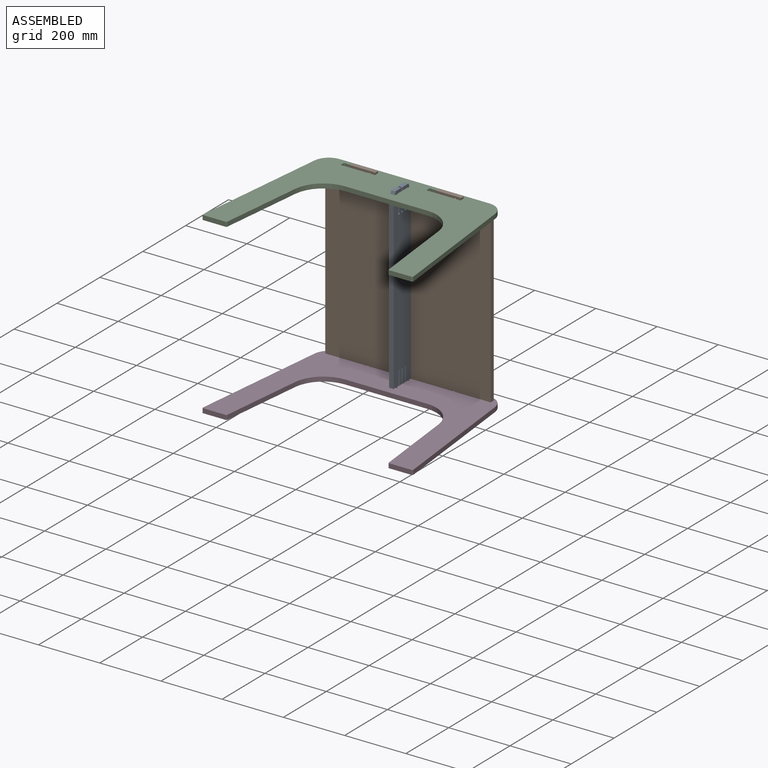
[diagram: assembled view]
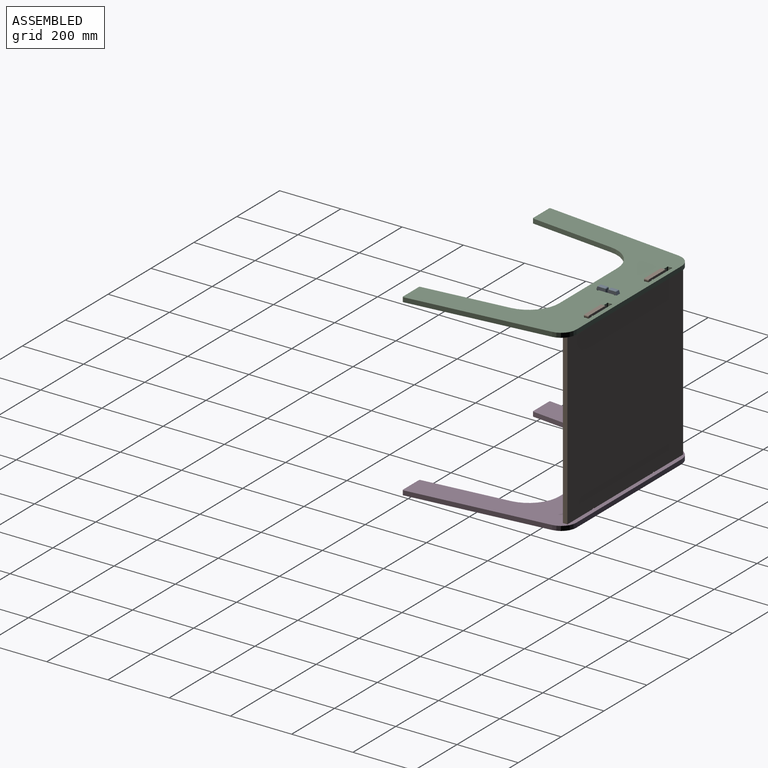
[diagram: assembled view, second angle]
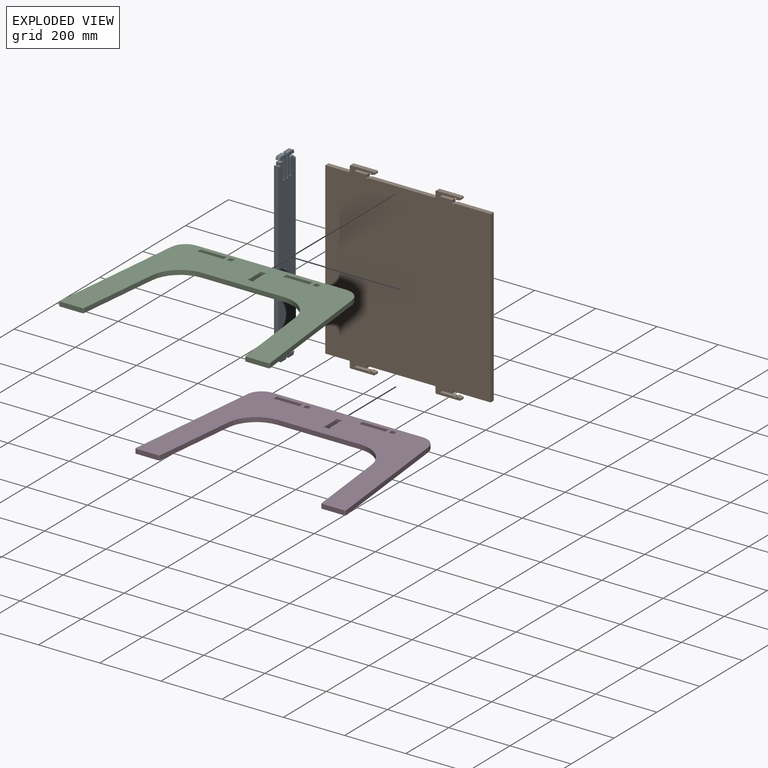
[diagram: exploded view]
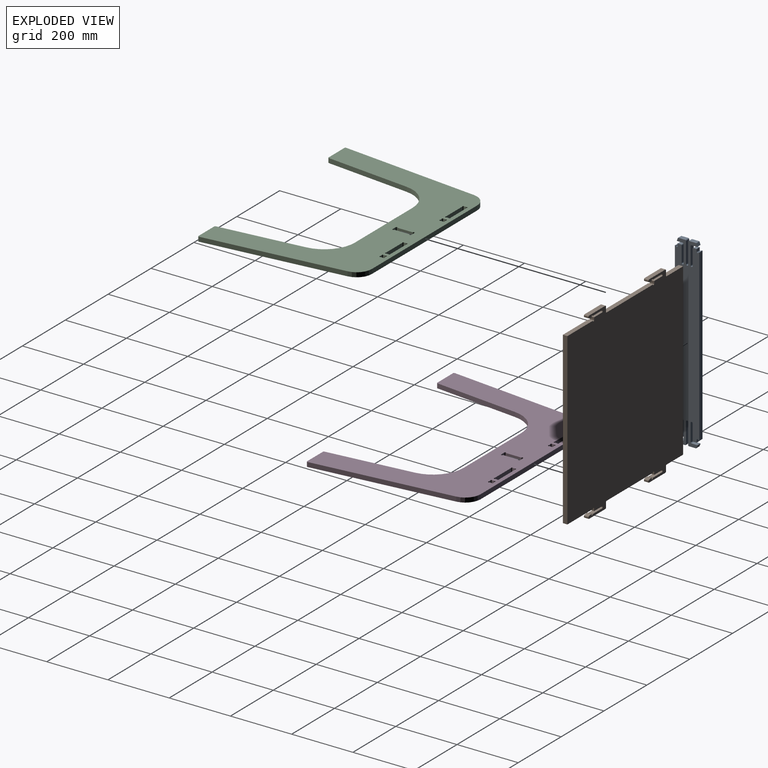
[diagram: exploded view, second angle]
ASSEMBLY  parts=4 mates=3
PART A: 82 faces, bbox 606.2x80x14.8 mm
  f0: plane 556x14.8mm, normal (0,1,0), area 8228.8mm2, adj f2,f3,f12,f52
  f1: plane 556x14.8mm, normal (0,-1,0), area 8228.8mm2, adj f2,f3,f13,f51
  f2: plane 606.17x80mm, normal (0,0,1), area 44539.7mm2, adj f0,f1,f4,f5,f6,f7,f8,f9
  f3: plane 606.17x80mm, normal (0,0,-1), area 44539.7mm2, adj f0,f1,f4,f5,f6,f7,f8,f9
  f4: cylinder r=3mm len=14.8mm, axis (0,0,-1), area 69.7mm2, adj f2,f3,f5,f42
  f5: plane 14.8x0.5mm, normal (1,0,0), area 7.4mm2, adj f2,f3,f4,f6
  f6: cylinder r=3mm len=14.8mm, axis (0,0,-1), area 69.7mm2, adj f2,f3,f5,f7
  f7: plane 51x14.8mm, normal (0,-1,0), area 754.8mm2, adj f2,f3,f6,f8
  f8: cylinder r=3mm len=14.8mm, axis (0,0,-1), area 69.7mm2, adj f2,f3,f7,f9
  f9: plane 14.8x10mm, normal (1,0,0), area 148mm2, adj f2,f3,f8,f10
  f10: plane 14.8x7.86mm, normal (0,1,0), area 116.3mm2, adj f2,f3,f9,f11
  f11: cylinder r=3mm len=14.8mm, axis (0,0,-1), area 139.5mm2, adj f2,f3,f10,f12
  f12: plane 14.8x3mm, normal (1,0,0), area 44.4mm2, adj f0,f2,f3,f11
  f13: plane 14.8x3mm, normal (1,0,0), area 44.4mm2, adj f1,f2,f3,f14
  f14: cylinder r=3mm len=14.8mm, axis (0,0,-1), area 139.5mm2, adj f2,f3,f13,f15
  f15: plane 14.8x7.86mm, normal (0,-1,0), area 116.3mm2, adj f2,f3,f14,f16
  f16: plane 14.8x10mm, normal (1,0,0), area 148mm2, adj f2,f3,f15,f17
  f17: cylinder r=3mm len=14.8mm, axis (0,0,-1), area 69.7mm2, adj f2,f3,f16,f18
  f18: plane 51x14.8mm, normal (0,1,0), area 754.8mm2, adj f2,f3,f17,f19
  f19: cylinder r=3mm len=14.8mm, axis (0,0,-1), area 69.7mm2, adj f2,f3,f18,f20
  f20: plane 14.8x0.5mm, normal (1,0,0), area 7.4mm2, adj f2,f3,f19,f21
  f21: cylinder r=3mm len=14.8mm, axis (0,0,-1), area 69.7mm2, adj f2,f3,f20,f22
  f22: plane 57.55x14.8mm, normal (0,-1,0), area 851.8mm2, adj f2,f3,f21,f23
  f23: cylinder r=3mm len=14.8mm, axis (0,0,-1), area 69mm2, adj f2,f3,f22,f24
  f24: plane 18.55x14.8mm, normal (-1,-0.02,0), area 274.6mm2, adj f2,f3,f23,f25
  f25: cylinder r=0.5mm len=14.8mm, axis (0,0,-1), area 14.1mm2, adj f2,f3,f24,f26
  f26: plane 14.8x8.36mm, normal (0.34,-0.94,0), area 131.7mm2, adj f2,f3,f25,f27
  f27: cylinder r=2mm len=14.8mm, axis (0,0,-1), area 36.2mm2, adj f2,f3,f26,f28
  f28: plane 22.03x14.8mm, normal (1,0,0), area 326.1mm2, adj f2,f3,f27,f29
  f29: cylinder r=3mm len=14.8mm, axis (0,0,-1), area 69.7mm2, adj f2,f3,f28,f30
  f30: plane 68.22x14.8mm, normal (0,1,0), area 1009.7mm2, adj f2,f3,f29,f31
  f31: cylinder r=3mm len=14.8mm, axis (0,0,-1), area 69.7mm2, adj f2,f3,f30,f32
  f32: plane 14.8x1mm, normal (1,0,0), area 14.8mm2, adj f2,f3,f31,f33
  f33: cylinder r=3mm len=14.8mm, axis (0,0,-1), area 69.7mm2, adj f2,f3,f32,f34
  f34: plane 68.22x14.8mm, normal (0,-1,0), area 1009.7mm2, adj f2,f3,f33,f35
  f35: cylinder r=3mm len=14.8mm, axis (0,0,-1), area 69.7mm2, adj f2,f3,f34,f36
  f36: plane 22.03x14.8mm, normal (1,0,0), area 326.1mm2, adj f2,f3,f35,f37
  f37: cylinder r=2mm len=14.8mm, axis (0,0,-1), area 36.2mm2, adj f2,f3,f36,f38
  f38: plane 14.8x8.36mm, normal (0.34,0.94,0), area 131.7mm2, adj f2,f3,f37,f39
  f39: cylinder r=0.5mm len=14.8mm, axis (0,0,-1), area 14.1mm2, adj f2,f3,f38,f40
  f40: plane 18.55x14.8mm, normal (-1,0.02,0), area 274.6mm2, adj f2,f3,f39,f41
  f41: cylinder r=3mm len=14.8mm, axis (0,0,-1), area 69mm2, adj f2,f3,f40,f42
  f42: plane 57.55x14.8mm, normal (0,1,0), area 851.8mm2, adj f2,f3,f4,f41
  f43: cylinder r=3mm len=14.8mm, axis (0,0,-1), area 69.7mm2, adj f2,f3,f44,f81
  f44: plane 14.8x0.5mm, normal (-1,0,0), area 7.4mm2, adj f2,f3,f43,f45
  f45: cylinder r=3mm len=14.8mm, axis (0,0,-1), area 69.7mm2, adj f2,f3,f44,f46
  f46: plane 51x14.8mm, normal (0,1,0), area 754.8mm2, adj f2,f3,f45,f47
  f47: cylinder r=3mm len=14.8mm, axis (0,0,-1), area 69.7mm2, adj f2,f3,f46,f48
  f48: plane 14.8x10mm, normal (-1,0,0), area 148mm2, adj f2,f3,f47,f49
  f49: plane 14.8x7.86mm, normal (0,-1,0), area 116.3mm2, adj f2,f3,f48,f50
  f50: cylinder r=3mm len=14.8mm, axis (0,0,-1), area 139.5mm2, adj f2,f3,f49,f51
  f51: plane 14.8x3mm, normal (-1,0,0), area 44.4mm2, adj f1,f2,f3,f50
  f52: plane 14.8x3mm, normal (-1,0,0), area 44.4mm2, adj f0,f2,f3,f53
  f53: cylinder r=3mm len=14.8mm, axis (0,0,-1), area 139.5mm2, adj f2,f3,f52,f54
  f54: plane 14.8x7.86mm, normal (0,1,0), area 116.3mm2, adj f2,f3,f53,f55
  f55: plane 14.8x10mm, normal (-1,0,0), area 148mm2, adj f2,f3,f54,f56
  f56: cylinder r=3mm len=14.8mm, axis (0,0,-1), area 69.7mm2, adj f2,f3,f55,f57
  f57: plane 51x14.8mm, normal (0,-1,0), area 754.8mm2, adj f2,f3,f56,f58
  f58: cylinder r=3mm len=14.8mm, axis (0,0,-1), area 69.7mm2, adj f2,f3,f57,f59
  f59: plane 14.8x0.5mm, normal (-1,0,0), area 7.4mm2, adj f2,f3,f58,f60
  f60: cylinder r=3mm len=14.8mm, axis (0,0,-1), area 69.7mm2, adj f2,f3,f59,f61
  f61: plane 57.55x14.8mm, normal (0,1,0), area 851.8mm2, adj f2,f3,f60,f62
  f62: cylinder r=3mm len=14.8mm, axis (0,0,-1), area 69mm2, adj f2,f3,f61,f63
  f63: plane 18.55x14.8mm, normal (1,0.02,0), area 274.6mm2, adj f2,f3,f62,f64
  f64: cylinder r=0.5mm len=14.8mm, axis (0,0,-1), area 14.1mm2, adj f2,f3,f63,f65
  f65: plane 14.8x8.36mm, normal (-0.34,0.94,0), area 131.7mm2, adj f2,f3,f64,f66
  f66: cylinder r=2mm len=14.8mm, axis (0,0,-1), area 36.2mm2, adj f2,f3,f65,f67
  f67: plane 22.03x14.8mm, normal (-1,0,0), area 326.1mm2, adj f2,f3,f66,f68
  f68: cylinder r=3mm len=14.8mm, axis (0,0,-1), area 69.7mm2, adj f2,f3,f67,f69
  f69: plane 68.22x14.8mm, normal (0,-1,0), area 1009.7mm2, adj f2,f3,f68,f70
  f70: cylinder r=3mm len=14.8mm, axis (0,0,-1), area 69.7mm2, adj f2,f3,f69,f71
  f71: plane 14.8x1mm, normal (-1,0,0), area 14.8mm2, adj f2,f3,f70,f72
  f72: cylinder r=3mm len=14.8mm, axis (0,0,-1), area 69.7mm2, adj f2,f3,f71,f73
  f73: plane 68.22x14.8mm, normal (0,1,0), area 1009.7mm2, adj f2,f3,f72,f74
  f74: cylinder r=3mm len=14.8mm, axis (0,0,-1), area 69.7mm2, adj f2,f3,f73,f75
  f75: plane 22.03x14.8mm, normal (-1,0,0), area 326.1mm2, adj f2,f3,f74,f76
  f76: cylinder r=2mm len=14.8mm, axis (0,0,-1), area 36.2mm2, adj f2,f3,f75,f77
  f77: plane 14.8x8.36mm, normal (-0.34,-0.94,0), area 131.7mm2, adj f2,f3,f76,f78
  f78: cylinder r=0.5mm len=14.8mm, axis (0,0,-1), area 14.1mm2, adj f2,f3,f77,f79
  f79: plane 18.55x14.8mm, normal (1,-0.02,0), area 274.6mm2, adj f2,f3,f78,f80
  f80: cylinder r=3mm len=14.8mm, axis (0,0,-1), area 69mm2, adj f2,f3,f79,f81
  f81: plane 57.55x14.8mm, normal (0,-1,0), area 851.8mm2, adj f2,f3,f43,f80
PART B: 82 faces, bbox 540x600x14.8 mm
  f0: plane 216x14.8mm, normal (0,1,0), area 3196.8mm2, adj f1,f20,f21,f40
  f1: cylinder r=3mm len=14.8mm, axis (0,0,-1), area 139.5mm2, adj f0,f2,f20,f21
  f2: plane 14.8x8mm, normal (1,0,0), area 118.4mm2, adj f1,f3,f20,f21
  f3: plane 36.57x14.8mm, normal (0,1,0), area 541.2mm2, adj f2,f4,f20,f21
  f4: cylinder r=3mm len=14.8mm, axis (0,0,-1), area 69.7mm2, adj f3,f5,f20,f21
  f5: plane 14.8x0.5mm, normal (1,0,0), area 7.4mm2, adj f4,f6,f20,f21
  f6: cylinder r=3mm len=14.8mm, axis (0,0,-1), area 69.7mm2, adj f5,f7,f20,f21
  f7: plane 42.5x14.8mm, normal (0,-1,0), area 629mm2, adj f6,f8,f20,f21
  f8: cylinder r=3mm len=14.8mm, axis (0,0,-1), area 139.5mm2, adj f7,f9,f20,f21
  f9: plane 14.8x2.2mm, normal (-1,0,0), area 32.6mm2, adj f8,f10,f20,f21
  f10: cylinder r=0.5mm len=14.8mm, axis (0,0,-1), area 12.9mm2, adj f9,f11,f20,f21
  f11: plane 14.8x11.71mm, normal (0.17,-0.98,0), area 175.9mm2, adj f10,f12,f20,f21
  f12: cylinder r=3mm len=14.8mm, axis (0,0,-1), area 62mm2, adj f11,f13,f20,f21
  f13: plane 14.8x2.18mm, normal (1,0,0), area 32.2mm2, adj f12,f14,f20,f21
  f14: cylinder r=3mm len=14.8mm, axis (0,0,-1), area 69.7mm2, adj f13,f15,f20,f21
  f15: plane 75.71x14.8mm, normal (0,1,0), area 1120.5mm2, adj f14,f16,f20,f21
  f16: cylinder r=3mm len=14.8mm, axis (0,0,-1), area 69.7mm2, adj f15,f17,f20,f21
  f17: plane 16x14.8mm, normal (-1,0,0), area 236.8mm2, adj f16,f18,f20,f21
  f18: cylinder r=3mm len=14.8mm, axis (0,0,-1), area 69.7mm2, adj f17,f19,f20,f21
  f19: plane 77x14.8mm, normal (0,1,0), area 1139.6mm2, adj f18,f20,f21,f81
  f20: plane 600x540mm, normal (0,0,1), area 304830.2mm2, adj f0,f1,f2,f3,f4,f5,f6,f7
  f21: plane 600x540mm, normal (0,0,-1), area 304830.2mm2, adj f0,f1,f2,f3,f4,f5,f6,f7
  f22: plane 119x14.8mm, normal (0,1,0), area 1761.2mm2, adj f20,f21,f23,f80
  f23: cylinder r=3mm len=14.8mm, axis (0,0,-1), area 139.5mm2, adj f20,f21,f22,f24
  f24: plane 14.8x8mm, normal (1,0,0), area 118.4mm2, adj f20,f21,f23,f25
  f25: plane 36.57x14.8mm, normal (0,1,0), area 541.2mm2, adj f20,f21,f24,f26
  f26: cylinder r=3mm len=14.8mm, axis (0,0,-1), area 69.7mm2, adj f20,f21,f25,f27
  f27: plane 14.8x0.5mm, normal (1,0,0), area 7.4mm2, adj f20,f21,f26,f28
  f28: cylinder r=3mm len=14.8mm, axis (0,0,-1), area 69.7mm2, adj f20,f21,f27,f29
  f29: plane 42.5x14.8mm, normal (0,-1,0), area 629mm2, adj f20,f21,f28,f30
  f30: cylinder r=3mm len=14.8mm, axis (0,0,-1), area 139.5mm2, adj f20,f21,f29,f31
  f31: plane 14.8x2.2mm, normal (-1,0,0), area 32.6mm2, adj f20,f21,f30,f32
  f32: cylinder r=0.5mm len=14.8mm, axis (0,0,-1), area 12.9mm2, adj f20,f21,f31,f33
  f33: plane 14.8x11.71mm, normal (0.17,-0.98,0), area 175.9mm2, adj f20,f21,f32,f34
  f34: cylinder r=3mm len=14.8mm, axis (0,0,-1), area 62mm2, adj f20,f21,f33,f35
  f35: plane 14.8x2.18mm, normal (1,0,0), area 32.2mm2, adj f20,f21,f34,f36
  f36: cylinder r=3mm len=14.8mm, axis (0,0,-1), area 69.7mm2, adj f20,f21,f35,f37
  f37: plane 75.71x14.8mm, normal (0,1,0), area 1120.5mm2, adj f20,f21,f36,f38
  f38: cylinder r=3mm len=14.8mm, axis (0,0,-1), area 69.7mm2, adj f20,f21,f37,f39
  f39: plane 16x14.8mm, normal (-1,0,0), area 236.8mm2, adj f20,f21,f38,f40
  f40: cylinder r=3mm len=14.8mm, axis (0,0,-1), area 69.7mm2, adj f0,f20,f21,f39
  f41: plane 119x14.8mm, normal (0,-1,0), area 1761.2mm2, adj f20,f21,f42,f80
  f42: cylinder r=3mm len=14.8mm, axis (0,0,1), area 139.5mm2, adj f20,f21,f41,f43
  f43: plane 14.8x8mm, normal (1,0,0), area 118.4mm2, adj f20,f21,f42,f44
  f44: plane 36.57x14.8mm, normal (0,-1,0), area 541.2mm2, adj f20,f21,f43,f45
  f45: cylinder r=3mm len=14.8mm, axis (0,0,1), area 69.7mm2, adj f20,f21,f44,f46
  f46: plane 14.8x0.5mm, normal (1,0,0), area 7.4mm2, adj f20,f21,f45,f47
  f47: cylinder r=3mm len=14.8mm, axis (0,0,1), area 69.7mm2, adj f20,f21,f46,f48
  f48: plane 42.5x14.8mm, normal (0,1,0), area 629mm2, adj f20,f21,f47,f49
  f49: cylinder r=3mm len=14.8mm, axis (0,0,1), area 139.5mm2, adj f20,f21,f48,f50
  f50: plane 14.8x2.2mm, normal (-1,0,0), area 32.6mm2, adj f20,f21,f49,f51
  f51: cylinder r=0.5mm len=14.8mm, axis (0,0,1), area 12.9mm2, adj f20,f21,f50,f52
  f52: plane 14.8x11.71mm, normal (0.17,0.98,0), area 175.9mm2, adj f20,f21,f51,f53
  f53: cylinder r=3mm len=14.8mm, axis (0,0,1), area 62mm2, adj f20,f21,f52,f54
  f54: plane 14.8x2.18mm, normal (1,0,0), area 32.2mm2, adj f20,f21,f53,f55
  f55: cylinder r=3mm len=14.8mm, axis (0,0,1), area 69.7mm2, adj f20,f21,f54,f56
  f56: plane 75.71x14.8mm, normal (0,-1,0), area 1120.5mm2, adj f20,f21,f55,f57
  f57: cylinder r=3mm len=14.8mm, axis (0,0,1), area 69.7mm2, adj f20,f21,f56,f58
  f58: plane 16x14.8mm, normal (-1,0,0), area 236.8mm2, adj f20,f21,f57,f59
  f59: cylinder r=3mm len=14.8mm, axis (0,0,1), area 69.7mm2, adj f20,f21,f58,f60
  f60: plane 216x14.8mm, normal (0,-1,0), area 3196.8mm2, adj f20,f21,f59,f61
  f61: cylinder r=3mm len=14.8mm, axis (0,0,1), area 139.5mm2, adj f20,f21,f60,f62
  f62: plane 14.8x8mm, normal (1,0,0), area 118.4mm2, adj f20,f21,f61,f63
  f63: plane 36.57x14.8mm, normal (0,-1,0), area 541.2mm2, adj f20,f21,f62,f64
  f64: cylinder r=3mm len=14.8mm, axis (0,0,1), area 69.7mm2, adj f20,f21,f63,f65
  f65: plane 14.8x0.5mm, normal (1,0,0), area 7.4mm2, adj f20,f21,f64,f66
  f66: cylinder r=3mm len=14.8mm, axis (0,0,1), area 69.7mm2, adj f20,f21,f65,f67
  f67: plane 42.5x14.8mm, normal (0,1,0), area 629mm2, adj f20,f21,f66,f68
  f68: cylinder r=3mm len=14.8mm, axis (0,0,1), area 139.5mm2, adj f20,f21,f67,f69
  f69: plane 14.8x2.2mm, normal (-1,0,0), area 32.6mm2, adj f20,f21,f68,f70
  f70: cylinder r=0.5mm len=14.8mm, axis (0,0,1), area 12.9mm2, adj f20,f21,f69,f71
  f71: plane 14.8x11.71mm, normal (0.17,0.98,0), area 175.9mm2, adj f20,f21,f70,f72
  f72: cylinder r=3mm len=14.8mm, axis (0,0,1), area 62mm2, adj f20,f21,f71,f73
  f73: plane 14.8x2.18mm, normal (1,0,0), area 32.2mm2, adj f20,f21,f72,f74
  f74: cylinder r=3mm len=14.8mm, axis (0,0,1), area 69.7mm2, adj f20,f21,f73,f75
  f75: plane 75.71x14.8mm, normal (0,-1,0), area 1120.5mm2, adj f20,f21,f74,f76
  f76: cylinder r=3mm len=14.8mm, axis (0,0,1), area 69.7mm2, adj f20,f21,f75,f77
  f77: plane 16x14.8mm, normal (-1,0,0), area 236.8mm2, adj f20,f21,f76,f78
  f78: cylinder r=3mm len=14.8mm, axis (0,0,1), area 69.7mm2, adj f20,f21,f77,f79
  f79: plane 77x14.8mm, normal (0,-1,0), area 1139.6mm2, adj f20,f21,f78,f81
  f80: plane 556x14.8mm, normal (1,0,0), area 8228.8mm2, adj f20,f21,f22,f41
  f81: plane 556x14.8mm, normal (-1,0,0), area 8228.8mm2, adj f19,f20,f21,f79
PART C: 58 faces, bbox 687.3x500x14.8 mm
  f0: plane 14.8x6.31mm, normal (-1,0,0), area 93.5mm2, adj f1,f14,f16,f17
  f1: cylinder r=3mm len=14.8mm, axis (0,0,-1), area 139.5mm2, adj f0,f2,f16,f17
  f2: plane 14.8x6.29mm, normal (0,1,0), area 93mm2, adj f1,f3,f16,f17
  f3: cylinder r=3mm len=14.8mm, axis (0,0,-1), area 139.5mm2, adj f2,f4,f16,f17
  f4: plane 14.8x6.31mm, normal (1,0,0), area 93.5mm2, adj f3,f5,f16,f17
  f5: cylinder r=3mm len=14.8mm, axis (0,0,-1), area 139.5mm2, adj f4,f6,f16,f17
  f6: plane 14.8x6.29mm, normal (0,-1,0), area 93mm2, adj f5,f14,f16,f17
  f7: cylinder r=3mm len=14.8mm, axis (0,0,-1), area 139.5mm2, adj f8,f15,f16,f17
  f8: plane 14.8x6.22mm, normal (-1,0,0), area 92mm2, adj f7,f9,f16,f17
  f9: cylinder r=3mm len=14.8mm, axis (0,0,-1), area 139.5mm2, adj f8,f10,f16,f17
  f10: plane 75.61x14.8mm, normal (0,1,0), area 1119mm2, adj f9,f11,f16,f17
  f11: cylinder r=3mm len=14.8mm, axis (0,0,-1), area 139.5mm2, adj f10,f12,f16,f17
  f12: plane 14.8x6.32mm, normal (1,0,0), area 93.5mm2, adj f11,f13,f16,f17
  f13: cylinder r=3mm len=14.8mm, axis (0,0,-1), area 139.5mm2, adj f12,f15,f16,f17
  f14: cylinder r=3mm len=14.8mm, axis (0,0,-1), area 139.5mm2, adj f0,f6,f16,f17
  f15: plane 75.52x14.8mm, normal (0,-1,0), area 1117.6mm2, adj f7,f13,f16,f17
  f16: plane 687.32x500mm, normal (0,0,1), area 136278.7mm2, adj f0,f1,f2,f3,f4,f5,f6,f7
  f17: plane 687.32x500mm, normal (0,0,-1), area 136278.7mm2, adj f0,f1,f2,f3,f4,f5,f6,f7
  f18: plane 14.8x6.31mm, normal (-1,0,0), area 93.5mm2, adj f16,f17,f19,f32
  f19: cylinder r=3mm len=14.8mm, axis (0,0,-1), area 139.5mm2, adj f16,f17,f18,f20
  f20: plane 14.8x6.29mm, normal (0,1,0), area 93mm2, adj f16,f17,f19,f21
  f21: cylinder r=3mm len=14.8mm, axis (0,0,-1), area 139.5mm2, adj f16,f17,f20,f22
  f22: plane 14.8x6.31mm, normal (1,0,0), area 93.5mm2, adj f16,f17,f21,f23
  f23: cylinder r=3mm len=14.8mm, axis (0,0,-1), area 139.5mm2, adj f16,f17,f22,f24
  f24: plane 14.8x6.29mm, normal (0,-1,0), area 93mm2, adj f16,f17,f23,f32
  f25: cylinder r=3mm len=14.8mm, axis (0,0,-1), area 139.5mm2, adj f16,f17,f26,f33
  f26: plane 14.8x6.22mm, normal (-1,0,0), area 92mm2, adj f16,f17,f25,f27
  f27: cylinder r=3mm len=14.8mm, axis (0,0,-1), area 139.5mm2, adj f16,f17,f26,f28
  f28: plane 75.61x14.8mm, normal (0,1,0), area 1119mm2, adj f16,f17,f27,f29
  f29: cylinder r=3mm len=14.8mm, axis (0,0,-1), area 139.5mm2, adj f16,f17,f28,f30
  f30: plane 14.8x6.32mm, normal (1,0,0), area 93.5mm2, adj f16,f17,f29,f31
  f31: cylinder r=3mm len=14.8mm, axis (0,0,-1), area 139.5mm2, adj f16,f17,f30,f33
  f32: cylinder r=3mm len=14.8mm, axis (0,0,-1), area 139.5mm2, adj f16,f17,f18,f24
  f33: plane 75.52x14.8mm, normal (0,-1,0), area 1117.6mm2, adj f16,f17,f25,f31
  f34: cylinder r=3mm len=14.8mm, axis (0,0,-1), area 139.5mm2, adj f16,f17,f35,f41
  f35: plane 50x14.8mm, normal (1,0,0), area 740mm2, adj f16,f17,f34,f36
  f36: cylinder r=3mm len=14.8mm, axis (0,0,-1), area 139.5mm2, adj f16,f17,f35,f37
  f37: plane 14.8x14.75mm, normal (0,-1,0), area 218.3mm2, adj f16,f17,f36,f38
  f38: cylinder r=3mm len=14.8mm, axis (0,0,-1), area 139.5mm2, adj f16,f17,f37,f39
  f39: plane 50x14.8mm, normal (-1,0,0), area 740mm2, adj f16,f17,f38,f40
  f40: cylinder r=3mm len=14.8mm, axis (0,0,-1), area 139.5mm2, adj f16,f17,f39,f41
  f41: plane 14.8x14.75mm, normal (0,1,0), area 218.3mm2, adj f16,f17,f34,f40
  f42: plane 452.05x48.82mm, normal (-0.99,0.11,0), area 6729.2mm2, adj f16,f17,f43,f57
  f43: cylinder r=3mm len=14.8mm, axis (0,0,-1), area 74.5mm2, adj f16,f17,f42,f44
  f44: plane 73.97x14.8mm, normal (0,-1,0), area 1094.7mm2, adj f16,f17,f43,f45
  f45: cylinder r=3mm len=14.8mm, axis (0,0,-1), area 65mm2, adj f16,f17,f44,f46
  f46: plane 275.06x29.71mm, normal (0.99,-0.11,0), area 4094.6mm2, adj f16,f17,f45,f47
  f47: cylinder r=100mm len=99.42mm, axis (0,0,-1), area 2165.6mm2, adj f16,f17,f46,f48
  f48: plane 269.17x14.8mm, normal (0,-1,0), area 3983.6mm2, adj f16,f17,f47,f49
  f49: cylinder r=100mm len=99.42mm, axis (0,0,-1), area 2165.6mm2, adj f16,f17,f48,f50
  f50: plane 275.06x29.71mm, normal (-0.99,-0.11,0), area 4094.6mm2, adj f16,f17,f49,f51
  f51: cylinder r=3mm len=14.8mm, axis (0,0,-1), area 65mm2, adj f16,f17,f50,f52
  f52: plane 73.97x14.8mm, normal (0,-1,0), area 1094.7mm2, adj f16,f17,f51,f53
  f53: cylinder r=3mm len=14.8mm, axis (0,0,-1), area 74.5mm2, adj f16,f17,f52,f54
  f54: plane 452.05x48.82mm, normal (0.99,0.11,0), area 6729.2mm2, adj f16,f17,f53,f55
  f55: cylinder r=50mm len=49.71mm, axis (0,0,-1), area 1082.8mm2, adj f16,f17,f54,f56
  f56: plane 490.22x14.8mm, normal (0,1,0), area 7255.2mm2, adj f16,f17,f55,f57
  f57: cylinder r=50mm len=49.71mm, axis (0,0,-1), area 1082.8mm2, adj f16,f17,f42,f56
PART D: same geometry as C
PLACE A rot(axis=(0,1,0),90deg) t=(-314.21,-138.09,-11.09)mm
PLACE B rot(axis=(1,0,0),90deg) t=(-603.52,-321.33,-540.71)mm
PLACE C t=(-1382.81,-792.93,14.99)mm
PLACE D t=(-1382.81,-792.93,-555.21)mm
MATE fastened A.f54 <-> C.f37  axis (0,1,0) through (-306.81,-330.33,14.99)mm
MATE fastened B.f9 <-> C.f4  axis (-1,0,0) through (-431.58,-313.93,29.79)mm
MATE fastened B.f50 <-> D.f22  axis (-1,0,0) through (-151.58,-313.93,-555.21)mm
